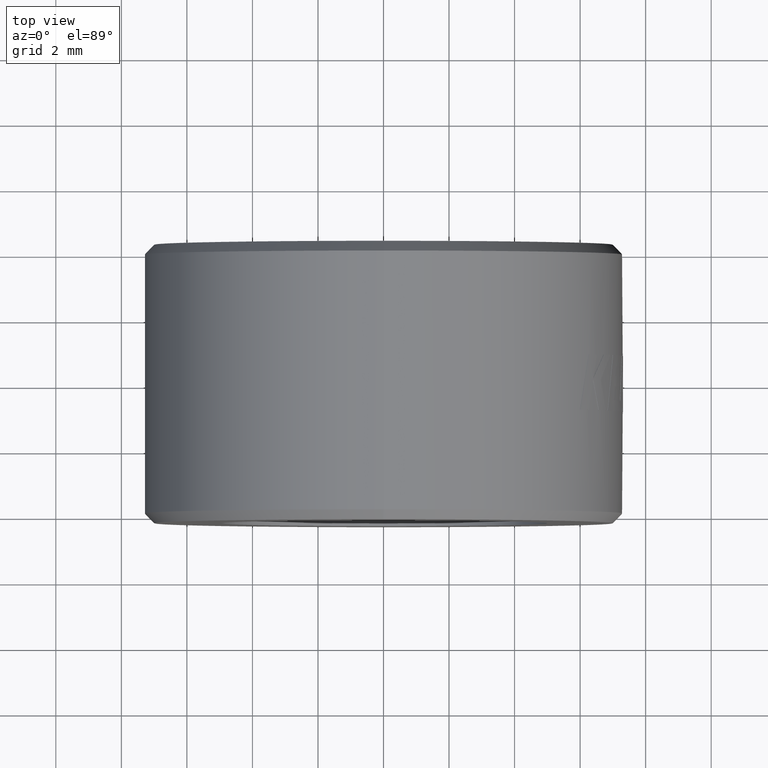
[diagram: clean part render]
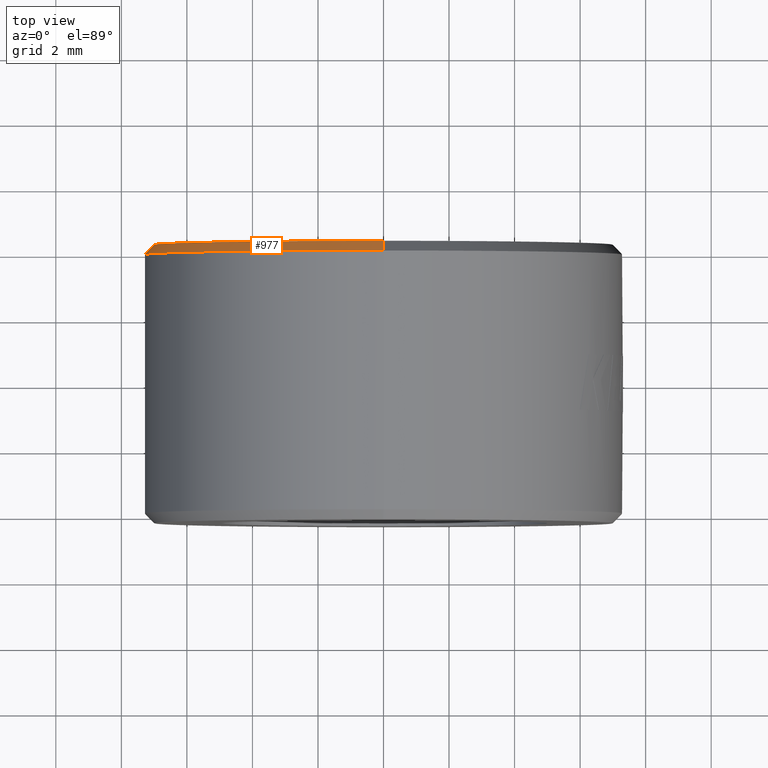
[diagram: same view with one face highlighted and labeled with its STEP entity id]
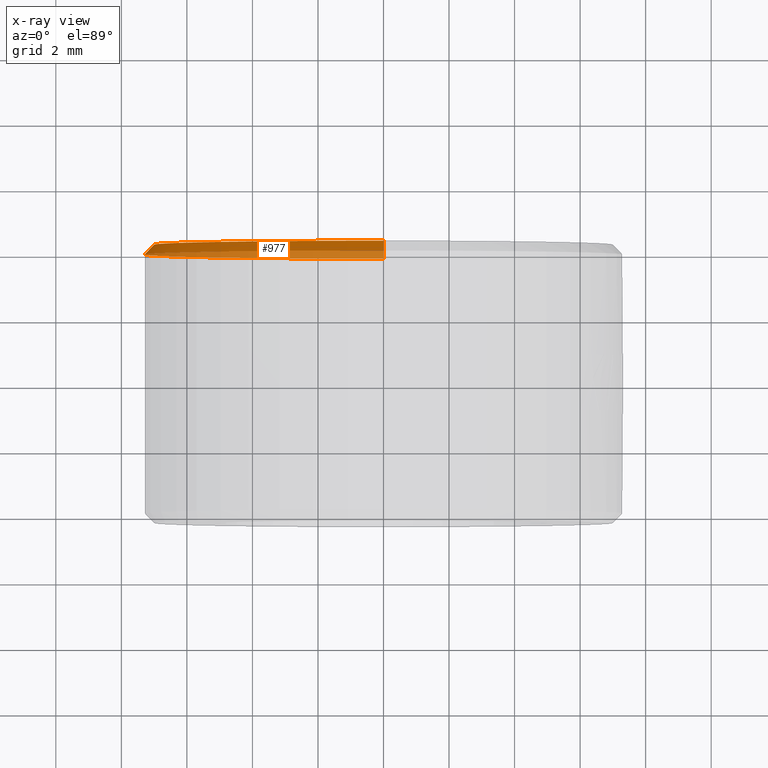
[diagram: x-ray of the same camera — body ghosted, the highlighted face saturated]
A machine part, top view. The second image highlights one B-rep face of the part: STEP entity #977.
The next image is the same camera in x-ray: the body ghosted, the highlighted face saturated — about 41% of this face is hidden behind the body in this view.
In plain terms, the highlighted conical surface has half-angle 45 deg.
Its self-contained STEP definition (entity closure, byte-faithful):
#33 = EDGE_CURVE ( 'NONE', #1170, #2052, #1580, .T. ) ;
#197 = CARTESIAN_POINT ( 'NONE',  ( 8.755759248119899566E-16, 4.250000000000000000, 6.999240000000000350 ) ) ;
#230 = DIRECTION ( 'NONE',  ( 0.000000000000000000, 0.000000000000000000, -1.000000000000000000 ) ) ;
#259 = CIRCLE ( 'NONE', #422, 7.299999999999999822 ) ;
#294 = DIRECTION ( 'NONE',  ( 0.000000000000000000, 0.000000000000000000, 1.000000000000000000 ) ) ;
#328 = CARTESIAN_POINT ( 'NONE',  ( 8.939921633775678831E-16, 3.949240000000003192, -7.299999999999999822 ) ) ;
#343 = CARTESIAN_POINT ( 'NONE',  ( 8.571596862464121287E-16, 4.250000000000000000, 6.999240000000000350 ) ) ;
#382 = EDGE_CURVE ( 'NONE', #1603, #2052, #259, .T. ) ;
#389 = VECTOR ( 'NONE', #712, 1000.000000000000114 ) ;
#422 = AXIS2_PLACEMENT_3D ( 'NONE', #2315, #2133, #1806 ) ;
#448 = EDGE_CURVE ( 'NONE', #1742, #1603, #2015, .T. ) ;
#583 = ORIENTED_EDGE ( 'NONE', *, *, #382, .F. ) ;
#604 = FACE_OUTER_BOUND ( 'NONE', #1018, .T. ) ;
#605 = VECTOR ( 'NONE', #1208, 1000.000000000000114 ) ;
#712 = DIRECTION ( 'NONE',  ( 8.659560562354969836E-17, -0.7071067811865443531, 0.7071067811865506814 ) ) ;
#788 = CIRCLE ( 'NONE', #1773, 6.999240000000000350 ) ;
#803 = DIRECTION ( 'NONE',  ( 0.000000000000000000, -1.000000000000000000, 0.000000000000000000 ) ) ;
#844 = CARTESIAN_POINT ( 'NONE',  ( 0.000000000000000000, 4.250000000000000000, 0.000000000000000000 ) ) ;
#915 = CARTESIAN_POINT ( 'NONE',  ( 0.000000000000000000, 4.250000000000000000, 0.000000000000000000 ) ) ;
#929 = CARTESIAN_POINT ( 'NONE',  ( 0.000000000000000000, 3.949240000000003192, 7.299999999999999822 ) ) ;
#977 = ADVANCED_FACE ( 'NONE', ( #604 ), #1533, .T. ) ;
#1012 = AXIS2_PLACEMENT_3D ( 'NONE', #915, #803, #230 ) ;
#1018 = EDGE_LOOP ( 'NONE', ( #1604, #2311, #1283, #583 ) ) ;
#1025 = EDGE_CURVE ( 'NONE', #1170, #1742, #788, .T. ) ;
#1170 = VERTEX_POINT ( 'NONE', #2229 ) ;
#1208 = DIRECTION ( 'NONE',  ( 0.000000000000000000, -0.7071067811865443531, -0.7071067811865506814 ) ) ;
#1283 = ORIENTED_EDGE ( 'NONE', *, *, #33, .T. ) ;
#1533 = CONICAL_SURFACE ( 'NONE', #1012, 6.999240000000000350, 0.7853981633974528309 ) ;
#1580 = LINE ( 'NONE', #2345, #605 ) ;
#1603 = VERTEX_POINT ( 'NONE', #929 ) ;
#1604 = ORIENTED_EDGE ( 'NONE', *, *, #448, .F. ) ;
#1742 = VERTEX_POINT ( 'NONE', #197 ) ;
#1773 = AXIS2_PLACEMENT_3D ( 'NONE', #844, #1964, #294 ) ;
#1806 = DIRECTION ( 'NONE',  ( 0.000000000000000000, 0.000000000000000000, 1.000000000000000000 ) ) ;
#1964 = DIRECTION ( 'NONE',  ( 0.000000000000000000, 1.000000000000000000, 0.000000000000000000 ) ) ;
#2015 = LINE ( 'NONE', #343, #389 ) ;
#2052 = VERTEX_POINT ( 'NONE', #328 ) ;
#2133 = DIRECTION ( 'NONE',  ( 0.000000000000000000, -1.000000000000000000, 0.000000000000000000 ) ) ;
#2229 = CARTESIAN_POINT ( 'NONE',  ( 0.000000000000000000, 4.250000000000000000, -6.999240000000000350 ) ) ;
#2311 = ORIENTED_EDGE ( 'NONE', *, *, #1025, .F. ) ;
#2315 = CARTESIAN_POINT ( 'NONE',  ( 0.000000000000000000, 3.949240000000003192, 0.000000000000000000 ) ) ;
#2345 = CARTESIAN_POINT ( 'NONE',  ( 0.000000000000000000, 4.250000000000000000, -6.999240000000000350 ) ) ;